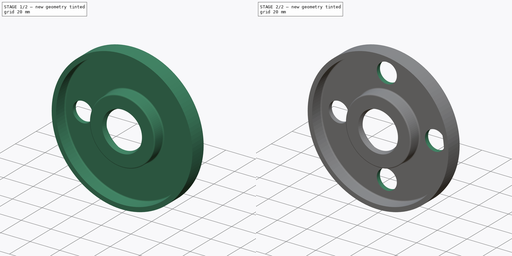
[diagram: build sequence overview — one tinted view per stage of 2, left to right]
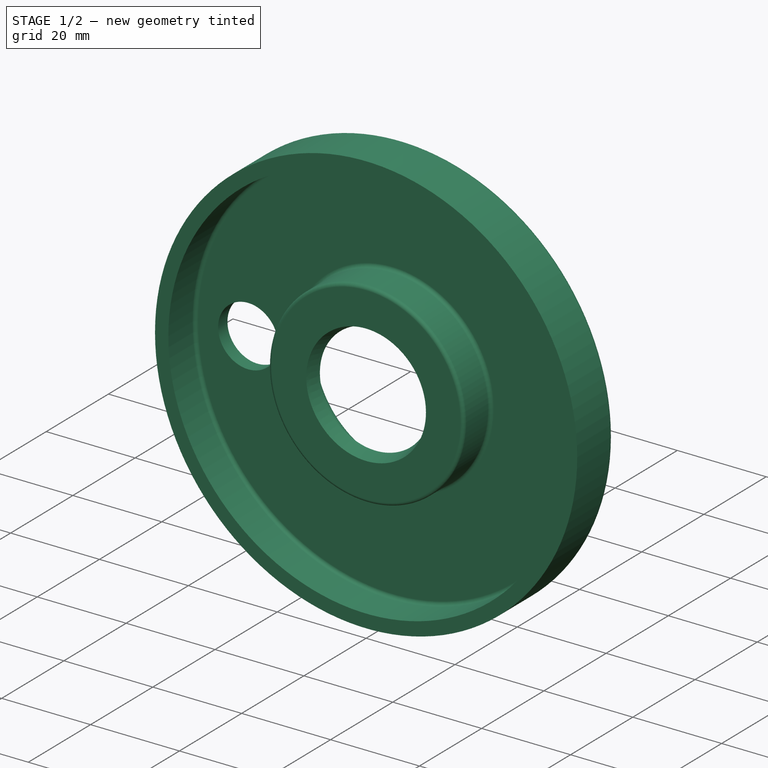
[diagram: stage 1 of 2 — iso view after this stage's code; geometry added in this stage tinted green]
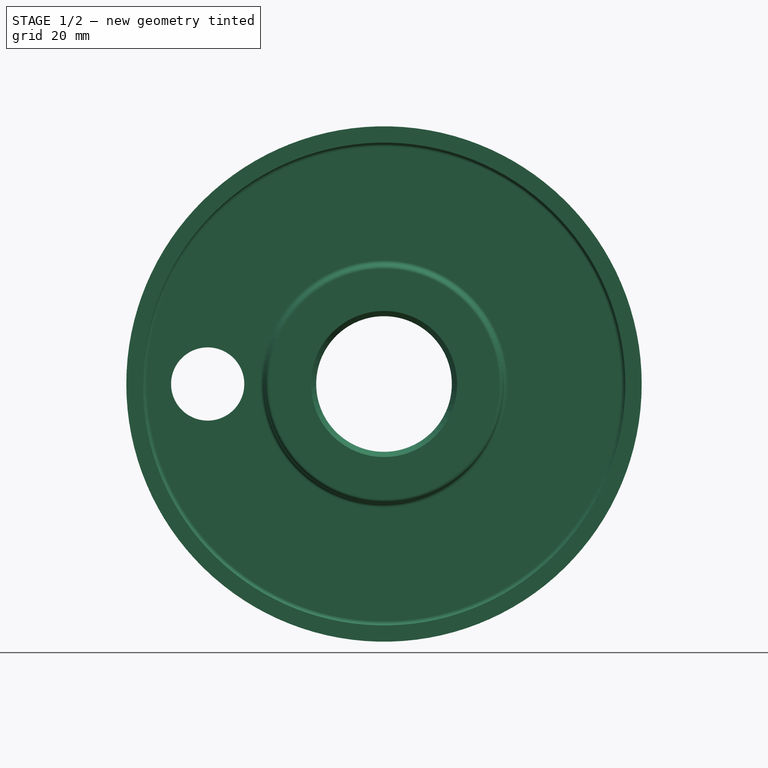
[diagram: stage 1 of 2 — front view after this stage's code; geometry added in this stage tinted green]
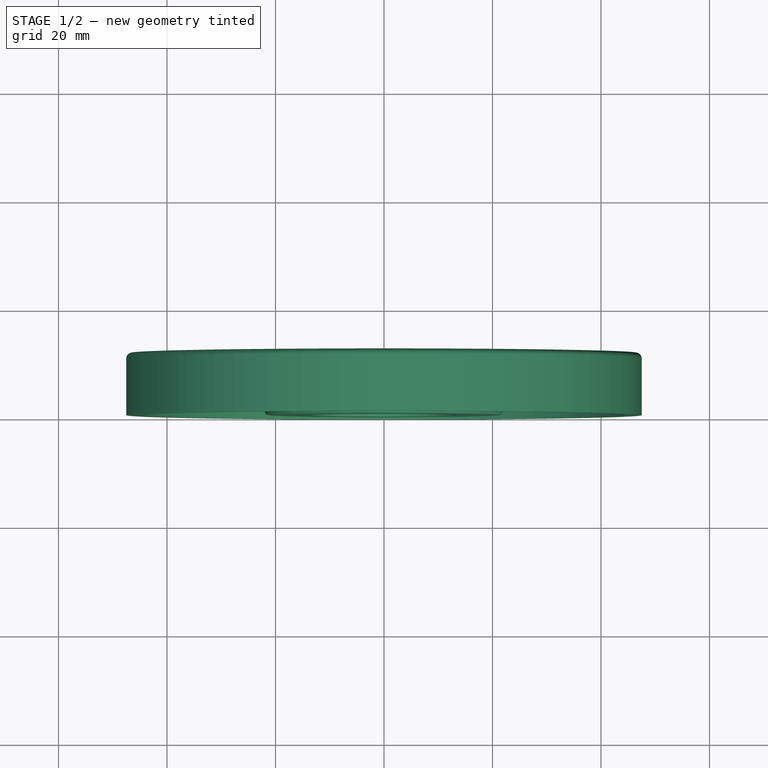
[diagram: stage 1 of 2 — top view after this stage's code; geometry added in this stage tinted green]
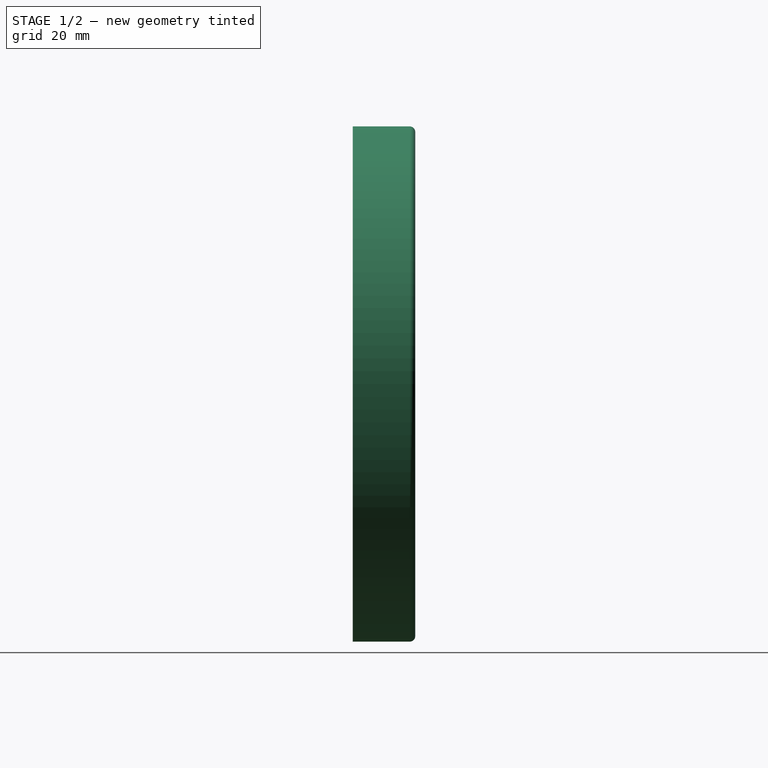
[diagram: stage 1 of 2 — right view after this stage's code; geometry added in this stage tinted green]
FCSTD DOCUMENT  (FreeCAD 0.16R5794 (Git))
Label: DN15_Stamped_Flange
License: All rights reserved
LicenseURL: http://en.wikipedia.org/wiki/All_rights_reserved
objects: Sketcher::SketchObject×2, PartDesign::Revolution×1, PartDesign::Pocket×1, PartDesign::PolarPattern×1
note: 7 computed .brp shape members not serialized (recipe doc carries the construction recipe); baked Part::Feature solids carry a one-line shape summary decoded from their .brp

FEATURE [Sketcher::SketchObject] Sketch
  expr: Constraints[28] = 38 / 2
  expr: Constraints[29] = 95 / 2
  expr: Constraints[38] = 3 / 3
  sketch-geometry (18):
    g0: LineSegment StartX=13.4657 StartY=0 StartZ=0 EndX=12.5 EndY=3 EndZ=0
    g1: LineSegment StartX=12.5 StartY=3 StartZ=0 EndX=19 EndY=3 EndZ=0
    g2: LineSegment StartX=19 StartY=10.5 StartZ=0 EndX=19 EndY=3 EndZ=0
    g3: LineSegment StartX=20 StartY=11.5 StartZ=0 EndX=46.5 EndY=11.5 EndZ=0
    g4: LineSegment StartX=47.5 StartY=0 StartZ=0 EndX=44.5 EndY=0 EndZ=0
    g5: LineSegment StartX=44.5 StartY=0 StartZ=0 EndX=44.5 EndY=7.70974 EndZ=0
    g6: LineSegment StartX=47.5 StartY=10.5 StartZ=0 EndX=47.5 EndY=0 EndZ=0
    g7: LineSegment StartX=21.2097 StartY=0 StartZ=0 EndX=13.4657 EndY=0 EndZ=0
    g8: LineSegment StartX=22 StartY=0.790255 StartZ=0 EndX=22 EndY=7.70974 EndZ=0
    g9: LineSegment StartX=22.7903 StartY=8.5 StartZ=0 EndX=43.7097 EndY=8.5 EndZ=0
    g10: LineSegment [constr] StartX=22 StartY=7.70974 StartZ=0 EndX=19 EndY=7.70974 EndZ=0
    g11: LineSegment [constr] StartX=19 StartY=3 StartZ=0 EndX=19 EndY=0 EndZ=0
    g12: ArcOfCircle CenterX=20 CenterY=10.5 CenterZ=0 NormalX=0 NormalY=0 NormalZ=1 Radius=1 StartAngle=1.5708 EndAngle=3.14159
    g13: ArcOfCircle CenterX=46.5 CenterY=10.5 CenterZ=0 NormalX=0 NormalY=0 NormalZ=1 Radius=1 StartAngle=0 EndAngle=1.5708
    g14: ArcOfCircle CenterX=22.7903 CenterY=7.70974 CenterZ=0 NormalX=0 NormalY=0 NormalZ=1 Radius=0.790255 StartAngle=1.5708 EndAngle=3.14159
    g15: ArcOfCircle CenterX=43.7097 CenterY=7.70974 CenterZ=0 NormalX=0 NormalY=0 NormalZ=1 Radius=0.790255 StartAngle=0 EndAngle=1.5708
    g16: ArcOfCircle CenterX=21.2097 CenterY=0.790255 CenterZ=0 NormalX=0 NormalY=0 NormalZ=1 Radius=0.790255 StartAngle=4.71239 EndAngle=6.28319
    g17: LineSegment [constr] StartX=22.7903 StartY=8.5 StartZ=0 EndX=22.7903 EndY=11.5 EndZ=0
  constraints (47):
    c: PointOnObject(g0,g-1)
    c: Coincident(g0,g1)
    c: Horizontal(g1)
    c: Vertical(g2)
    c: PointOnObject(g4,g-1)
    c: PointOnObject(g4,g-1)
    c: Coincident(g4,g5)
    c: Vertical(g5)
    c: Vertical(g6)
    c: Coincident(g7,g0)
    c: Horizontal(g7)
    c: DistanceX(g4,g4) = 3
    c: Horizontal(g3)
    c: DistanceY(g0,g0) = -3
    c: DistanceX(g-1,g0) = 12.5
    c: Coincident(g2,g1)
    c: Vertical(g8)
    c: Horizontal(g9)
    c: PointOnObject(g10,g2)
    c: Horizontal(g10)
    c: Coincident(g11,g1)
    c: PointOnObject(g11,g7)
    c: Vertical(g11)
    c: Tangent(g3,g12) = 1.5708
    c: Tangent(g2,g12) = -1.5708
    c: Tangent(g3,g13) = 1.5708
    c: Tangent(g6,g13) = 1.5708
    c: Equal(g10,g4)
    c: DistanceX(g-1,g1) = 19
    c: DistanceX(g-1,g6) = 47.5
    c: Equal(g12,g13)
    c: Coincident(g6,g4)
    c: Tangent(g9,g14) = 1.5708
    c: Tangent(g8,g14) = 1.5708
    c: Tangent(g9,g15) = 1.5708
    c: Tangent(g5,g15) = -1.5708
    c: Tangent(g8,g16) = -1.5708
    c: Tangent(g7,g16) = 1.5708
    c: Radius(g12) = 1
    c: Equal(g15,g14)
    c: Coincident(g10,g8)
    c: Coincident(g17,g9)
    c: PointOnObject(g17,g3)
    c: Vertical(g17)
    c: Equal(g17,g11)
    c: DistanceY(g-1,g17) = 11.5
    c: Equal(g14,g16)
FEATURE [PartDesign::Revolution] Revolution
  Angle = 360
  Axis = (0,1,0)
  Base = (0,0,0)
  ReferenceAxis = -> Sketch [V_Axis]
  Reversed = true
  Sketch = -> Sketch
FEATURE [Sketcher::SketchObject] Sketch001
  ExternalGeometry = -> [Revolution]
  Placement = pos=(0,11.5,0) rot=(0,0.707107,0.707107;3.14159rad)
  Support = -> Revolution [Face6]
  expr: Constraints[1] = 13.5 / 2
  expr: Constraints[2] = 65 / 2
  sketch-geometry (1):
    g0: Circle CenterX=32.5 CenterY=0 CenterZ=0 NormalX=0 NormalY=0 NormalZ=1 Radius=6.75
  constraints (3):
    c: PointOnObject(g0,g-1)
    c: Radius(g0) = 6.75
    c: DistanceX(g-1,g0) = 32.5
FEATURE [PartDesign::Pocket] Pocket
  Length = 5
  Sketch = -> Sketch001
  Type = 0
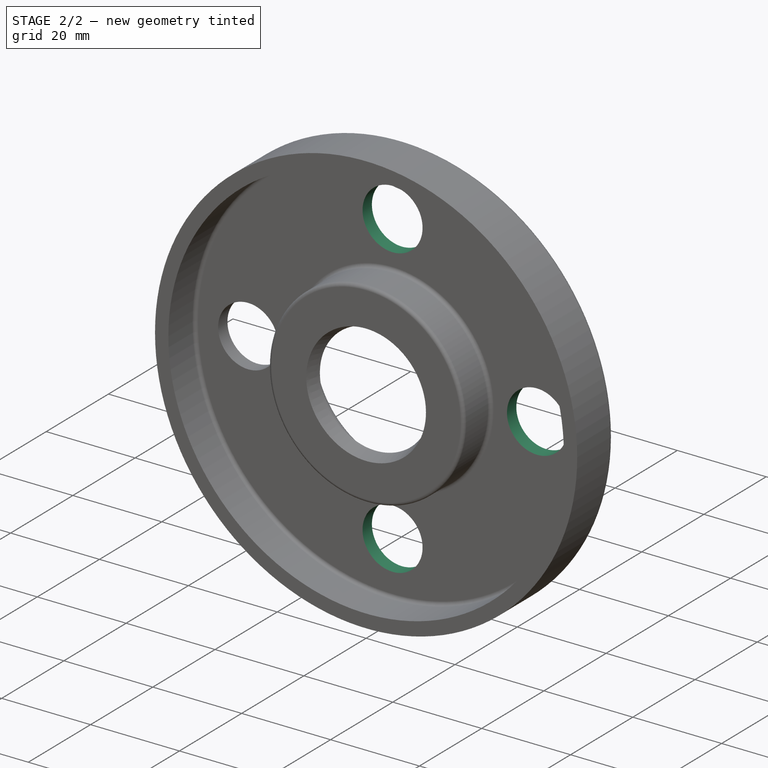
[diagram: stage 2 of 2 — iso view after this stage's code; geometry added in this stage tinted green]
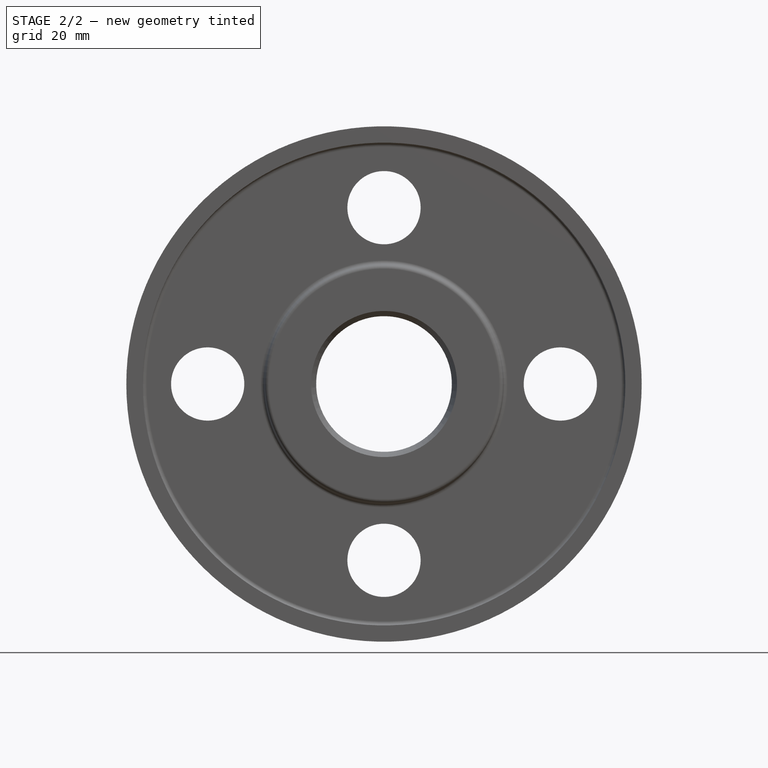
[diagram: stage 2 of 2 — front view after this stage's code; geometry added in this stage tinted green]
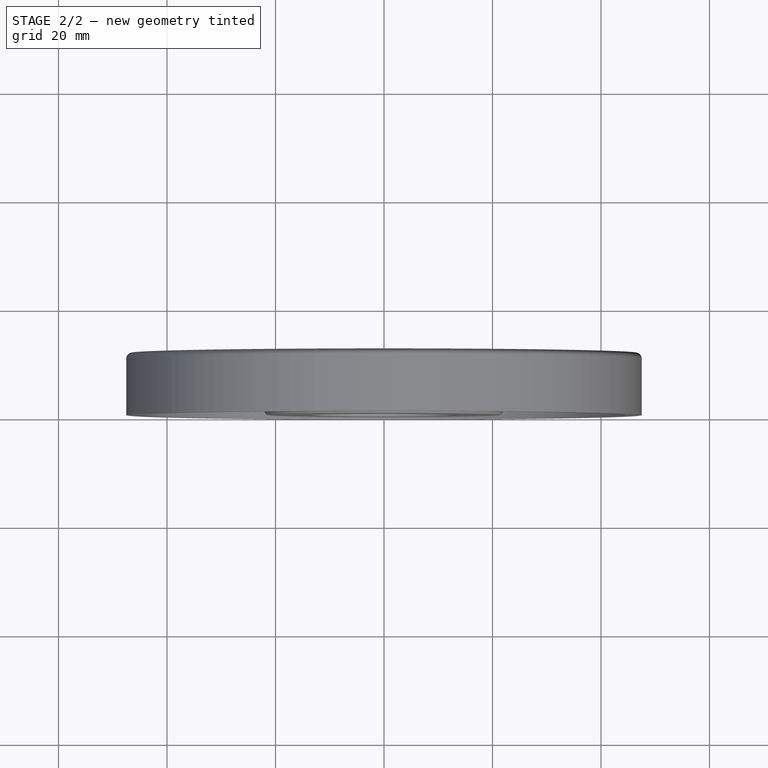
[diagram: stage 2 of 2 — top view after this stage's code; geometry added in this stage tinted green]
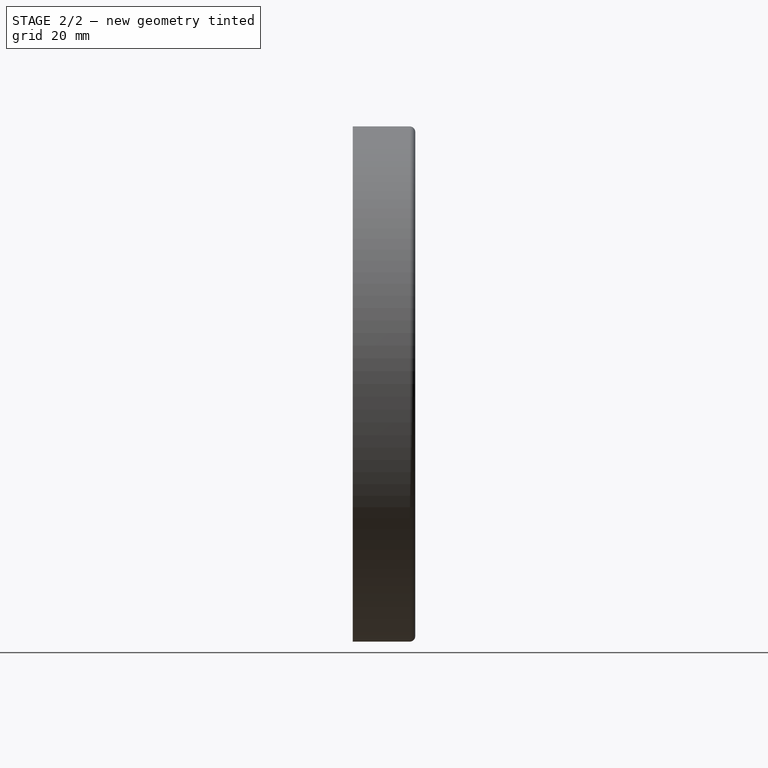
[diagram: stage 2 of 2 — right view after this stage's code; geometry added in this stage tinted green]
FEATURE [PartDesign::PolarPattern] PolarPattern  label="DN15_Stamped_Flange"
  Angle = 360
  Axis = -> Sketch001 [N_Axis]
  Occurrences = 4
  Originals = -> [Pocket]
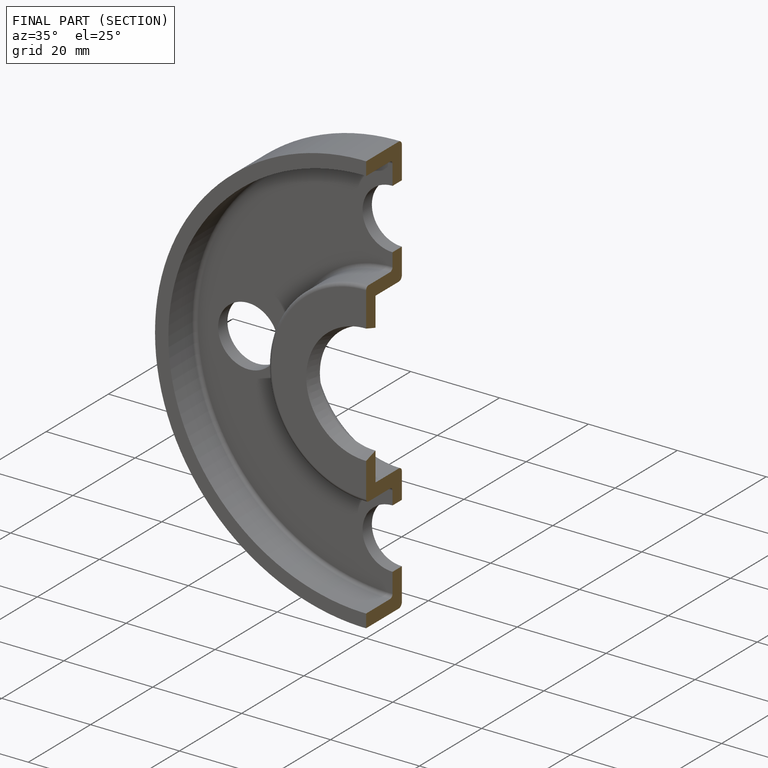
[diagram: finished part — half-section view (interior)]
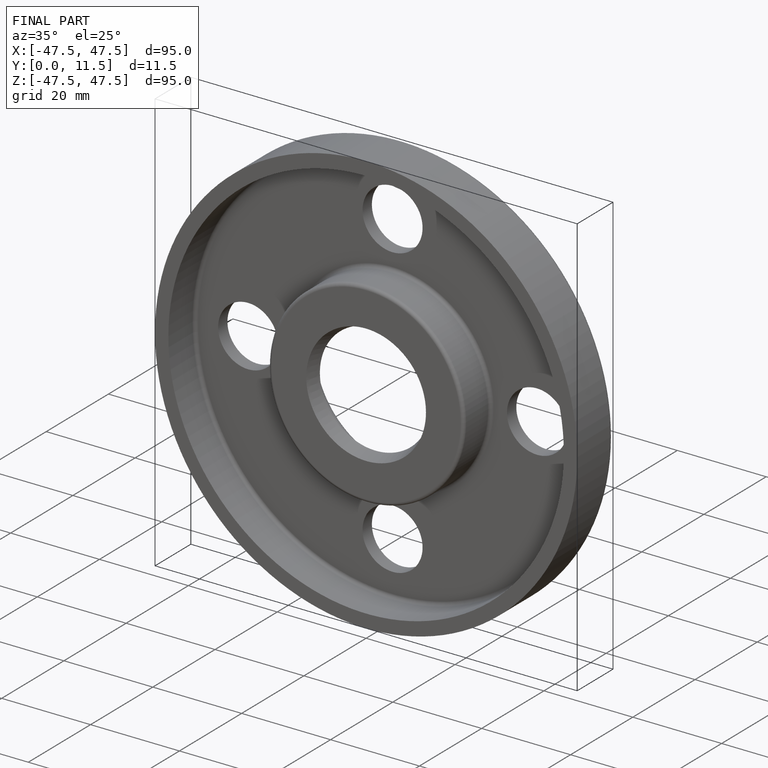
[diagram: finished part — iso view with bounding-box wireframe]
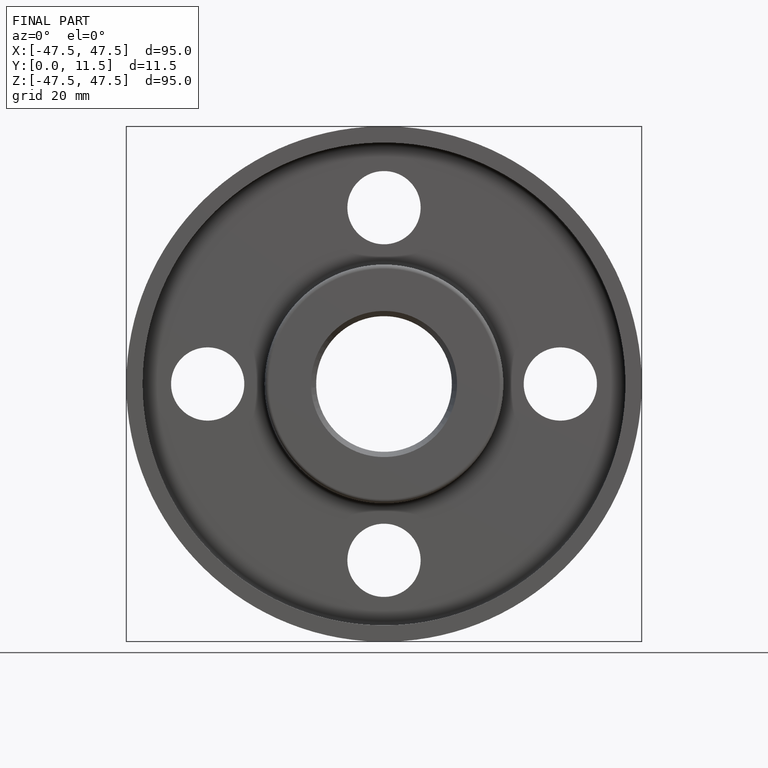
[diagram: finished part — front view with bounding-box wireframe]
